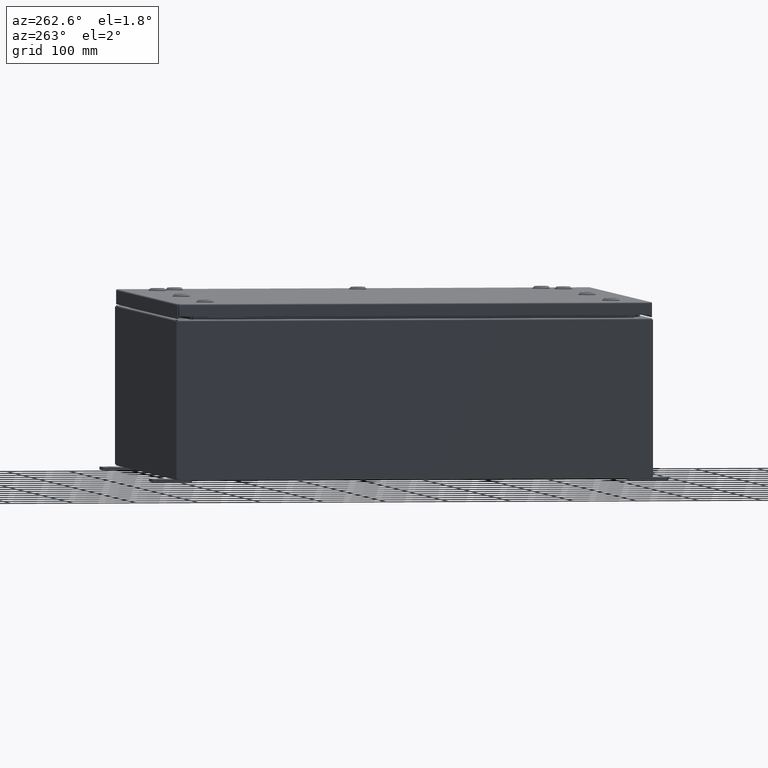
[diagram: clean part render]
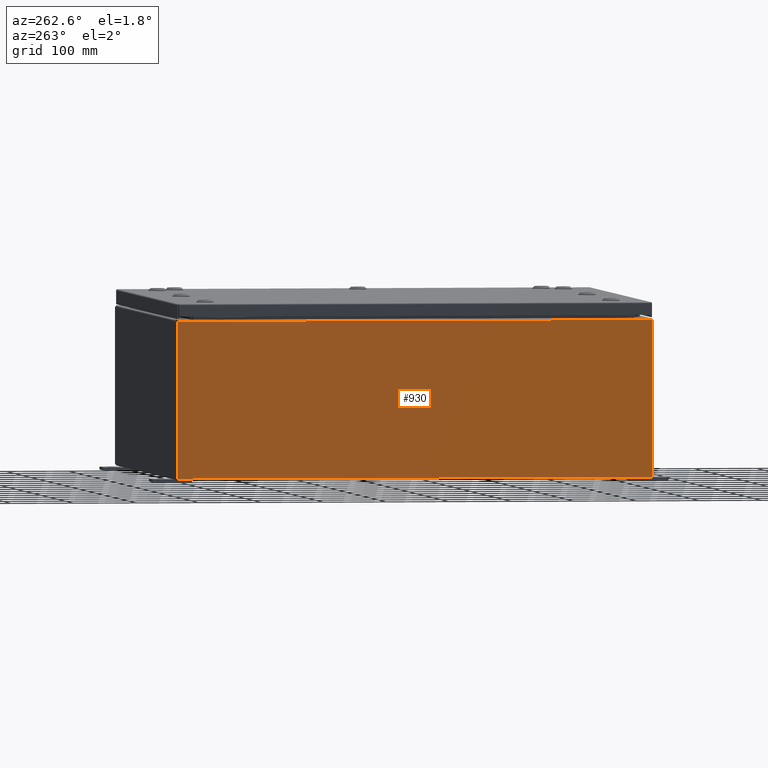
[diagram: same view with one face highlighted and labeled with its STEP entity id]
A machine part, auxiliary view. The second image highlights one B-rep face of the part: STEP entity #930.
In plain terms, the highlighted planar face has unit normal (1, 0, 0).
Its self-contained STEP definition (entity closure, byte-faithful):
#189 = DIRECTION ( 'NONE',  ( 1.000000000000000000, 0.0000000000000000000, 3.523082860860887800E-015 ) ) ;
#930 = ADVANCED_FACE ( 'NONE', ( #8230 ), #22093, .F. ) ;
#2335 = ORIENTED_EDGE ( 'NONE', *, *, #7258, .F. ) ;
#2621 = EDGE_CURVE ( 'NONE', #65279, #47860, #45477, .T. ) ;
#3772 = VERTEX_POINT ( 'NONE', #46441 ) ;
#6961 = VECTOR ( 'NONE', #24580, 39.37007874015748100 ) ;
#6968 = CARTESIAN_POINT ( 'NONE',  ( -15.00000000000000000, 14.92530000000000000, 0.01299999999999984700 ) ) ;
#7258 = EDGE_CURVE ( 'NONE', #63241, #47860, #31771, .T. ) ;
#8230 = FACE_OUTER_BOUND ( 'NONE', #52935, .T. ) ;
#11247 = CARTESIAN_POINT ( 'NONE',  ( -15.00000000000003600, 14.92530000000000000, 9.837599999999998300 ) ) ;
#13747 = CARTESIAN_POINT ( 'NONE',  ( -15.00000000000000000, 0.0000000000000000000, -5.310705656892489500E-014 ) ) ;
#14348 = CARTESIAN_POINT ( 'NONE',  ( -15.00000000000000000, -14.92530000000000000, -5.310705656892489500E-014 ) ) ;
#18632 = VECTOR ( 'NONE', #22592, 39.37007874015748100 ) ;
#20858 = ORIENTED_EDGE ( 'NONE', *, *, #2621, .T. ) ;
#22093 = PLANE ( 'NONE',  #35964 ) ;
#22592 = DIRECTION ( 'NONE',  ( 3.523082860860888200E-015, 0.0000000000000000000, -1.000000000000000000 ) ) ;
#24580 = DIRECTION ( 'NONE',  ( -3.523082860860888200E-015, 0.0000000000000000000, 1.000000000000000000 ) ) ;
#24601 = CARTESIAN_POINT ( 'NONE',  ( -15.00000000000003600, -14.92530000000000000, 9.837599999999998300 ) ) ;
#24852 = LINE ( 'NONE', #24601, #65177 ) ;
#29426 = EDGE_CURVE ( 'NONE', #63241, #3772, #32378, .T. ) ;
#31771 = LINE ( 'NONE', #6968, #43571 ) ;
#32005 = DIRECTION ( 'NONE',  ( 3.523082860860887800E-015, 0.0000000000000000000, -1.000000000000000000 ) ) ;
#32378 = LINE ( 'NONE', #14348, #6961 ) ;
#35964 = AXIS2_PLACEMENT_3D ( 'NONE', #13747, #189, #32005 ) ;
#36563 = CARTESIAN_POINT ( 'NONE',  ( -15.00000000000000000, 14.92530000000000000, 0.01299999999999984300 ) ) ;
#39554 = DIRECTION ( 'NONE',  ( 0.0000000000000000000, 1.000000000000000000, 0.0000000000000000000 ) ) ;
#43571 = VECTOR ( 'NONE', #44860, 39.37007874015748100 ) ;
#44179 = EDGE_CURVE ( 'NONE', #3772, #65279, #24852, .T. ) ;
#44860 = DIRECTION ( 'NONE',  ( -0.0000000000000000000, 1.000000000000000000, -0.0000000000000000000 ) ) ;
#45477 = LINE ( 'NONE', #51691, #18632 ) ;
#46441 = CARTESIAN_POINT ( 'NONE',  ( -15.00000000000003600, -14.92530000000000000, 9.837599999999998300 ) ) ;
#47860 = VERTEX_POINT ( 'NONE', #36563 ) ;
#48988 = ORIENTED_EDGE ( 'NONE', *, *, #29426, .T. ) ;
#51691 = CARTESIAN_POINT ( 'NONE',  ( -15.00000000000000000, 14.92530000000000000, -5.310705656892489500E-014 ) ) ;
#52935 = EDGE_LOOP ( 'NONE', ( #58011, #20858, #2335, #48988 ) ) ;
#57783 = CARTESIAN_POINT ( 'NONE',  ( -15.00000000000000000, -14.92530000000000000, 0.01299999999999984700 ) ) ;
#58011 = ORIENTED_EDGE ( 'NONE', *, *, #44179, .T. ) ;
#63241 = VERTEX_POINT ( 'NONE', #57783 ) ;
#65177 = VECTOR ( 'NONE', #39554, 39.37007874015748100 ) ;
#65279 = VERTEX_POINT ( 'NONE', #11247 ) ;